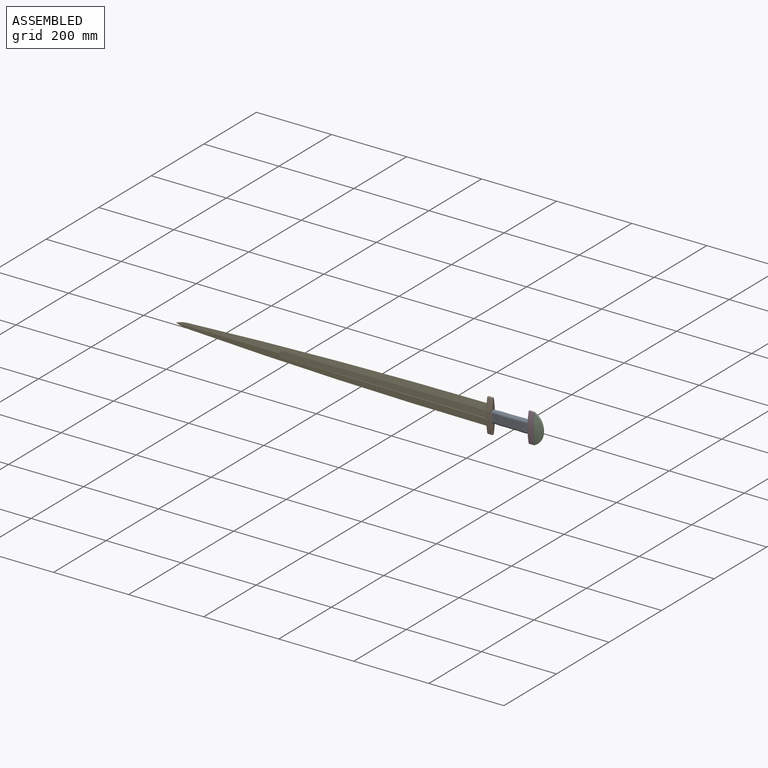
[diagram: assembled view]
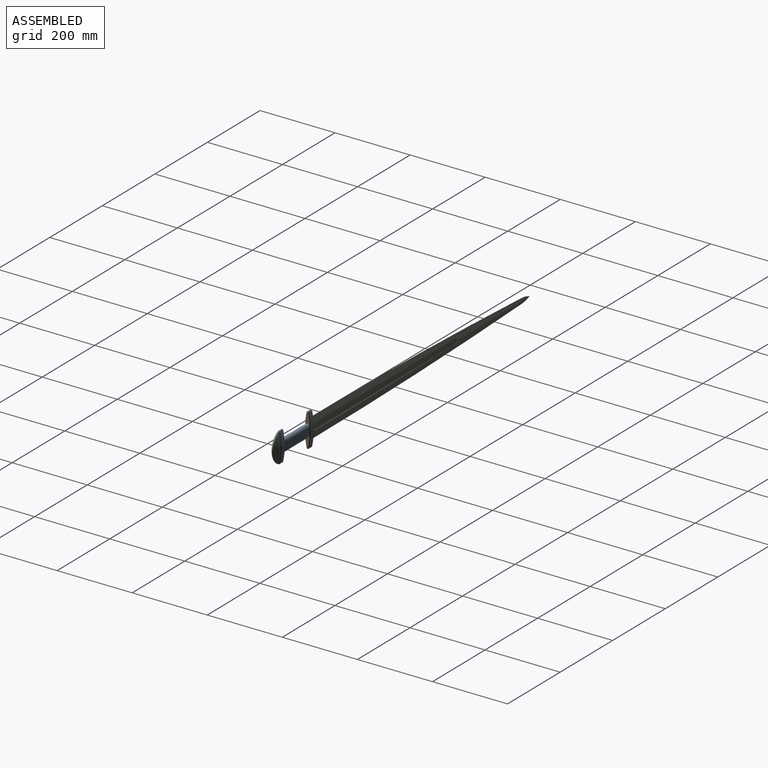
[diagram: assembled view, second angle]
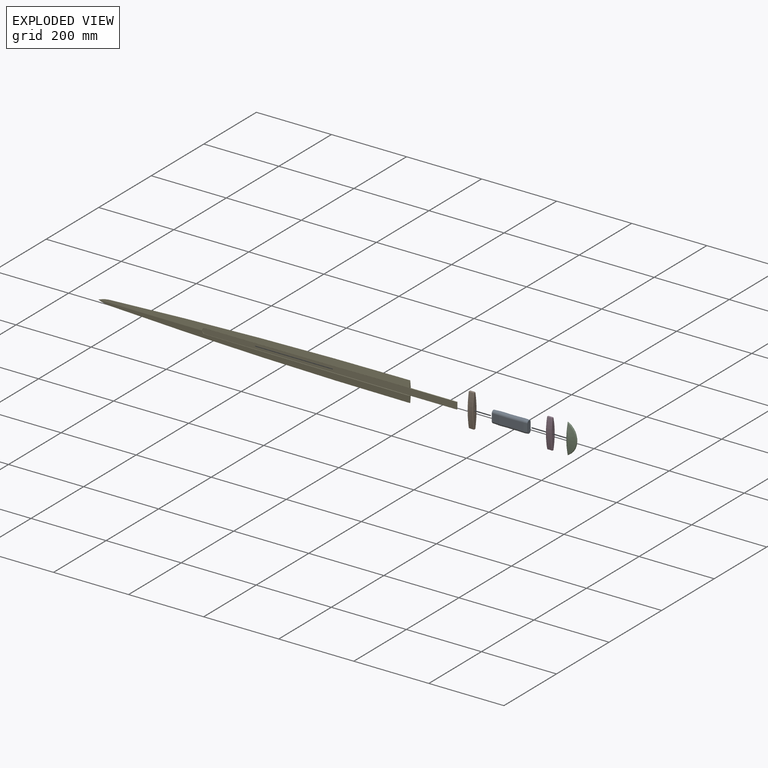
[diagram: exploded view]
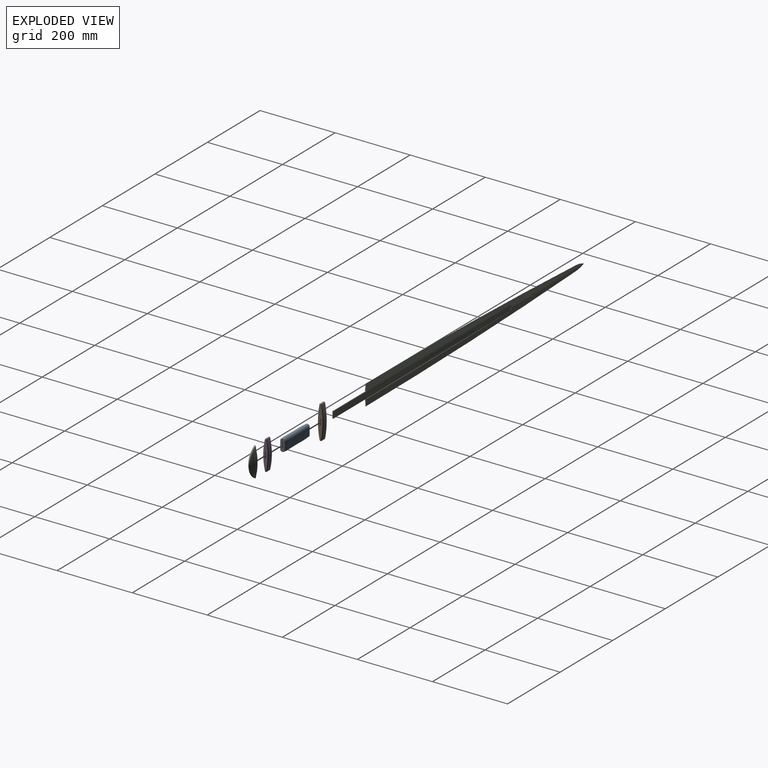
[diagram: exploded view, second angle]
ASSEMBLY  parts=5 mates=4
PART A: 22 faces, bbox 95x14x34.2 mm
  f0: plane 95x18mm, normal (0,-1,0), area 1710mm2, adj f1,f2,f4,f5
  f1: plane 31.53x12.03mm, normal (-1,0,0), area 311mm2, adj f0,f4,f5,f6,f10,f11,f12,f13
  f2: plane 32.18x12.03mm, normal (1,0,0), area 318.8mm2, adj f0,f4,f5,f6,f16,f17,f18,f19
  f3: plane 65x20.14mm, normal (0,1,0), area 1242.6mm2, adj f8,f9,f13,f20
  f4: plane 95x2mm, normal (0,0,-1), area 190mm2, adj f0,f1,f2,f6
  f5: plane 95x2mm, normal (0,0,1), area 190mm2, adj f0,f1,f2,f6
  f6: plane 95x18mm, normal (0,1,0), area 1710mm2, adj f1,f2,f4,f5
  f7: plane 65x20.14mm, normal (0,-1,0), area 1242.6mm2, adj f8,f9,f12,f17
  f8: torus R=1007mm, axis (0,-1,0), area 1427.6mm2, adj f3,f7,f14,f15,f19,f21
  f9: torus R=1007mm, axis (0,-1,0), area 1427.6mm2, adj f3,f7,f10,f11,f16,f18
  f10: bspline ~20.03x7.01mm, area 204.6mm2, adj f1,f9,f11,f12
  f11: bspline ~20.03x7.01mm, area 204.6mm2, adj f1,f9,f10,f13
  f12: plane 20x19.49mm, normal (-0.05,-1,0), area 390.4mm2, adj f1,f7,f10,f14
  f13: plane 20x19.49mm, normal (-0.05,1,0), area 390.4mm2, adj f1,f3,f11,f15
  f14: bspline ~20.03x7.01mm, area 204.6mm2, adj f1,f8,f12,f15
  f15: bspline ~20.03x7.01mm, area 204.6mm2, adj f1,f8,f13,f14
  f16: bspline ~10.04x7.01mm, area 102.9mm2, adj f2,f9,f17,f18
  f17: plane 20.14x10mm, normal (0.1,-1,0), area 202.4mm2, adj f2,f7,f16,f19
  f18: bspline ~10.04x7.01mm, area 102.9mm2, adj f2,f9,f16,f20
  f19: bspline ~10.04x7.01mm, area 102.9mm2, adj f2,f8,f17,f21
  f20: plane 20.14x10mm, normal (0.1,1,0), area 202.4mm2, adj f2,f3,f18,f21
  f21: bspline ~10.04x7.01mm, area 102.9mm2, adj f2,f8,f19,f20
PART B: 30 faces, bbox 90x15x14.3 mm
  f0: plane 18x15mm, normal (0,0,-1), area 270mm2, adj f1,f7,f8,f9
  f1: plane 15x2mm, normal (-1,0,0), area 30mm2, adj f0,f2,f8,f9
  f2: plane 18x15mm, normal (0,0,1), area 270mm2, adj f1,f7,f8,f9
  f3: cylinder r=220mm len=86.79mm, axis (0,1,0), area 1135.7mm2, adj f10,f11,f20,f23
  f4: plane 13x1.74mm, normal (-1,0,0), area 22.6mm2, adj f11,f12,f19,f27
  f5: cylinder r=220mm len=86.79mm, axis (0,1,0), area 1135.7mm2, adj f12,f13,f15,f28
  f6: plane 13x1.74mm, normal (1,0,0), area 22.6mm2, adj f10,f13,f16,f24
  f7: plane 15x2mm, normal (1,0,0), area 30mm2, adj f0,f2,f8,f9
  f8: plane 88x12.3mm, normal (0,-1,0), area 785.2mm2, adj f0,f1,f2,f7,f22,f23,f24,f25
  f9: plane 88x12.3mm, normal (0,1,0), area 785.2mm2, adj f0,f1,f2,f7,f14,f15,f16,f17
  f10: cylinder r=2mm len=13mm, axis (0,1,0), area 35.7mm2, adj f3,f6,f18,f22
  f11: cylinder r=2mm len=13mm, axis (0,1,0), area 35.7mm2, adj f3,f4,f21,f25
  f12: cylinder r=2mm len=13mm, axis (0,1,0), area 35.7mm2, adj f4,f5,f17,f29
  f13: cylinder r=2mm len=13mm, axis (0,1,0), area 35.7mm2, adj f5,f6,f14,f26
  f14: cone r=1mm half-angle=45deg, axis (0,-1,0), area 2.9mm2, adj f9,f13,f15,f16
  f15: cone r=220mm half-angle=45deg, axis (0,-1,0), area 123.3mm2, adj f5,f9,f14,f17
  f16: plane 1.74x1mm, normal (0.71,0.71,0), area 2.5mm2, adj f6,f9,f14,f18
  f17: cone r=1mm half-angle=45deg, axis (0,-1,0), area 2.9mm2, adj f9,f12,f15,f19
  f18: cone r=1mm half-angle=45deg, axis (0,-1,0), area 2.9mm2, adj f9,f10,f16,f20
  f19: plane 1.74x1mm, normal (-0.71,0.71,0), area 2.5mm2, adj f4,f9,f17,f21
  f20: cone r=220mm half-angle=45deg, axis (0,-1,0), area 123.3mm2, adj f3,f9,f18,f21
  f21: cone r=1mm half-angle=45deg, axis (0,-1,0), area 2.9mm2, adj f9,f11,f19,f20
  f22: cone r=1mm half-angle=45deg, axis (0,1,0), area 2.9mm2, adj f8,f10,f23,f24
  f23: cone r=219mm half-angle=45deg, axis (0,1,0), area 123.3mm2, adj f3,f8,f22,f25
  f24: plane 1.74x1mm, normal (0.71,-0.71,0), area 2.5mm2, adj f6,f8,f22,f26
  f25: cone r=1mm half-angle=45deg, axis (0,1,0), area 2.9mm2, adj f8,f11,f23,f27
  f26: cone r=1mm half-angle=45deg, axis (0,1,0), area 2.9mm2, adj f8,f13,f24,f28
  f27: plane 1.74x1mm, normal (-0.71,-0.71,0), area 2.5mm2, adj f4,f8,f25,f29
  f28: cone r=219mm half-angle=45deg, axis (0,1,0), area 123.3mm2, adj f5,f8,f26,f29
  f29: cone r=1mm half-angle=45deg, axis (0,1,0), area 2.9mm2, adj f8,f12,f27,f28
PART C: 14 faces, bbox 82.7x15x31.2 mm
  f0: cylinder r=45mm len=80mm, axis (0,1,0), area 196.6mm2, adj f1,f6,f7,f9,f10,f12,f13
  f1: plane 81.13x12.48mm, normal (0,0,-1), area 638.4mm2, adj f0,f6,f8,f9,f10,f11,f13
  f2: cone r=25mm half-angle=76deg, axis (0,1,0), area 975.6mm2, adj f5,f6,f7,f9
  f3: cone r=45mm half-angle=76deg, axis (0,-1,0), area 975.6mm2, adj f4,f10,f12,f13
  f4: torus R=20.08mm, axis (0,-1,0), area 216.6mm2, adj f3,f11
  f5: torus R=20.08mm, axis (0,-1,0), area 216.5mm2, adj f2,f8
  f6: bspline ~20.55x5.28mm, area 38.4mm2, adj f0,f1,f2,f7,f8
  f7: cone r=45mm half-angle=38deg, axis (0,1,0), area 149.4mm2, adj f0,f2,f6,f9
  f8: bspline ~39.85x2.39mm, area 75.5mm2, adj f1,f5,f6,f9
  f9: bspline ~21.57x5.5mm, area 38.4mm2, adj f0,f1,f2,f7,f8
  f10: bspline ~20.55x5.28mm, area 38.4mm2, adj f0,f1,f3,f11,f12
  f11: bspline ~39.85x2.39mm, area 75.5mm2, adj f1,f4,f10,f13
  f12: cone r=45mm half-angle=38deg, axis (0,-1,0), area 149.4mm2, adj f0,f3,f10,f13
  f13: bspline ~20.55x5.28mm, area 38.4mm2, adj f0,f1,f3,f11,f12
PART D: 30 faces, bbox 80x15x13.8 mm
  f0: plane 18x15mm, normal (0,0,-1), area 270mm2, adj f1,f7,f8,f9
  f1: plane 15x2mm, normal (-1,0,0), area 30mm2, adj f0,f2,f8,f9
  f2: plane 18x15mm, normal (0,0,1), area 270mm2, adj f1,f7,f8,f9
  f3: cylinder r=165mm len=76.93mm, axis (0,1,0), area 1009.4mm2, adj f10,f11,f15,f24
  f4: plane 13x0.86mm, normal (-1,0,0), area 11.2mm2, adj f10,f12,f16,f23
  f5: cylinder r=165mm len=76.93mm, axis (0,1,0), area 1009.4mm2, adj f12,f13,f20,f27
  f6: plane 13x0.86mm, normal (1,0,0), area 11.2mm2, adj f11,f13,f19,f28
  f7: plane 15x2mm, normal (1,0,0), area 30mm2, adj f0,f2,f8,f9
  f8: plane 78x11.84mm, normal (0,-1,0), area 644.1mm2, adj f0,f1,f2,f7,f22,f23,f24,f25
  f9: plane 78x11.84mm, normal (0,1,0), area 644.1mm2, adj f0,f1,f2,f7,f14,f15,f16,f17
  f10: cylinder r=2mm len=13mm, axis (0,1,0), area 34.7mm2, adj f3,f4,f14,f22
  f11: cylinder r=2mm len=13mm, axis (0,1,0), area 34.7mm2, adj f3,f6,f17,f26
  f12: cylinder r=2mm len=13mm, axis (0,1,0), area 34.7mm2, adj f4,f5,f18,f25
  f13: cylinder r=2mm len=13mm, axis (0,1,0), area 34.7mm2, adj f5,f6,f21,f29
  f14: cone r=1mm half-angle=45deg, axis (0,-1,0), area 2.8mm2, adj f9,f10,f15,f16
  f15: cone r=165mm half-angle=45deg, axis (0,-1,0), area 109.5mm2, adj f3,f9,f14,f17
  f16: plane 1x1mm, normal (-0.71,0.71,0), area 1.2mm2, adj f4,f9,f14,f18
  f17: cone r=1mm half-angle=45deg, axis (0,-1,0), area 2.8mm2, adj f9,f11,f15,f19
  f18: cone r=1mm half-angle=45deg, axis (0,-1,0), area 2.8mm2, adj f9,f12,f16,f20
  f19: plane 1x1mm, normal (0.71,0.71,0), area 1.2mm2, adj f6,f9,f17,f21
  f20: cone r=165mm half-angle=45deg, axis (0,-1,0), area 109.5mm2, adj f5,f9,f18,f21
  f21: cone r=1mm half-angle=45deg, axis (0,-1,0), area 2.8mm2, adj f9,f13,f19,f20
  f22: cone r=1mm half-angle=45deg, axis (0,1,0), area 2.8mm2, adj f8,f10,f23,f24
  f23: plane 1x1mm, normal (-0.71,-0.71,0), area 1.2mm2, adj f4,f8,f22,f25
  f24: cone r=164mm half-angle=45deg, axis (0,1,0), area 109.5mm2, adj f3,f8,f22,f26
  f25: cone r=1mm half-angle=45deg, axis (0,1,0), area 2.8mm2, adj f8,f12,f23,f27
  f26: cone r=1mm half-angle=45deg, axis (0,1,0), area 2.8mm2, adj f8,f11,f24,f28
  f27: cone r=164mm half-angle=45deg, axis (0,1,0), area 109.5mm2, adj f5,f8,f25,f29
  f28: plane 1x1mm, normal (0.71,-0.71,0), area 1.2mm2, adj f6,f8,f26,f29
  f29: cone r=1mm half-angle=45deg, axis (0,1,0), area 2.8mm2, adj f8,f13,f27,f28
PART E: 36 faces, bbox 1502.7x55x8.4 mm
  f0: plane 18.5x4mm, normal (-1,0,0), area 38.5mm2, adj f4,f11,f15,f16,f18,f19,f25,f31
  f1: plane 18.5x4mm, normal (-1,0,0), area 38.5mm2, adj f2,f9,f12,f14,f17,f23,f26,f27
  f2: plane 198.76x1.28mm, normal (0,0,-1), area 96.4mm2, adj f1,f26,f27,f28
  f3: plane 0.04x0mm, normal (0,0,-1), area 0mm2, adj f25,f26,f29,f30
  f4: plane 198.84x1.28mm, normal (0,0,1), area 96.5mm2, adj f0,f18,f19,f20
  f5: plane 677.97x18mm, normal (0,0,-1), area 11062.6mm2, adj f13,f14,f15,f33,f34,f35
  f6: cylinder r=84.73mm len=30mm, axis (0,0,-1), area 19.5mm2, adj f7,f18,f25
  f7: cylinder r=84.73mm len=30mm, axis (0,0,-1), area 19.5mm2, adj f6,f17,f26
  f8: plane 678.02x18mm, normal (0,0,1), area 11063.3mm2, adj f9,f10,f11,f33,f34,f35
  f9: plane 546.06x2.02mm, normal (0,-1,0), area 325.7mm2, adj f1,f8,f10,f23,f24
  f10: cylinder r=7mm len=14mm, axis (0,0,-1), area 6.4mm2, adj f8,f9,f11,f21,f22
  f11: plane 546.12x2.02mm, normal (0,1,0), area 325.9mm2, adj f0,f8,f10,f19,f20
  f12: plane 198.65x1.28mm, normal (0,0,1), area 96.3mm2, adj f1,f17,f23,f24
  f13: cylinder r=7mm len=14mm, axis (0,0,1), area 6.4mm2, adj f5,f14,f15,f29,f30
  f14: plane 546.02x2.02mm, normal (0,-1,0), area 325.8mm2, adj f1,f5,f13,f27,f28
  f15: plane 546.02x2.02mm, normal (0,1,0), area 325.8mm2, adj f0,f5,f13,f31,f32
  f16: plane 198.76x1.28mm, normal (0,0,-1), area 96.4mm2, adj f0,f25,f31,f32
  f17: cone r=15733.01mm half-angle=83.6deg, axis (0,0,-1), area 11810.1mm2, adj f1,f7,f12,f18,f22,f24,f26
  f18: cone r=15715.25mm half-angle=83.6deg, axis (0,0,-1), area 11811.3mm2, adj f0,f4,f6,f17,f20,f21,f25
  f19: cylinder r=0.2mm len=198.83mm, axis (1,0,0), area 62.5mm2, adj f0,f4,f11,f20
  f20: bspline ~1385.94x6.36mm, area 116.9mm2, adj f4,f11,f18,f19,f21
  f21: bspline ~8.49x8.13mm, area 3.6mm2, adj f10,f18,f20,f22
  f22: bspline ~8.43x8.19mm, area 3.7mm2, adj f10,f17,f21,f24
  f23: cylinder r=0.2mm len=198.64mm, axis (-1,0,0), area 62.4mm2, adj f1,f9,f12,f24
  f24: bspline ~1385.94x6.36mm, area 116.9mm2, adj f9,f12,f17,f22,f23
  f25: cone r=15733.01mm half-angle=83.6deg, axis (0,0,1), area 12164.7mm2, adj f0,f3,f6,f16,f18,f26,f30,f32
  f26: cone r=15715.25mm half-angle=83.6deg, axis (0,0,1), area 12164.7mm2, adj f1,f2,f3,f7,f17,f25,f28,f29
  f27: cylinder r=0.2mm len=198.75mm, axis (1,0,0), area 62.4mm2, adj f1,f2,f14,f28
  f28: bspline ~1385.94x6.36mm, area 116.9mm2, adj f2,f14,f26,f27,f29
  f29: bspline ~8.43x8.19mm, area 3.7mm2, adj f3,f13,f26,f28,f30
  f30: bspline ~8.43x8.19mm, area 3.7mm2, adj f3,f13,f25,f29,f32
  f31: cylinder r=0.2mm len=198.75mm, axis (-1,0,0), area 62.4mm2, adj f0,f15,f16,f32
  f32: bspline ~1385.94x6.36mm, area 116.9mm2, adj f15,f16,f25,f30,f31
  f33: plane 125x2mm, normal (0,1,0), area 250mm2, adj f1,f5,f8,f35
  f34: plane 125x2mm, normal (0,-1,0), area 250mm2, adj f0,f5,f8,f35
  f35: plane 18x2mm, normal (-1,0,0), area 36mm2, adj f5,f8,f33,f34
PLACE A t=(-1.99,112.32,38.13)mm
PLACE B rot(axis=(-0.58,-0.58,-0.58),120deg) t=(-1.99,98.11,10.63)mm
PLACE C rot(axis=(0.71,0,0.71),180deg) t=(108.01,98.32,15.63)mm
PLACE D rot(axis=(-0.58,0.58,0.58),120deg) t=(93.01,105.32,55.63)mm
PLACE E rot(axis=(0,0.71,0.71),180deg) t=(-16.99,104.32,28.13)mm
MATE fastened C.f1 <-> E.f35  axis (-1,0,0) through (108.01,105.32,55.63)mm
MATE fastened D.f9 <-> A.f2  axis (-1,0,0) through (93.01,105.32,55.63)mm
MATE fastened B.f9 <-> A.f1  axis (1,0,0) through (-1.99,105.32,55.63)mm
MATE fastened B.f8 <-> E.f0  axis (-1,0,0) through (-16.99,105.32,55.63)mm
